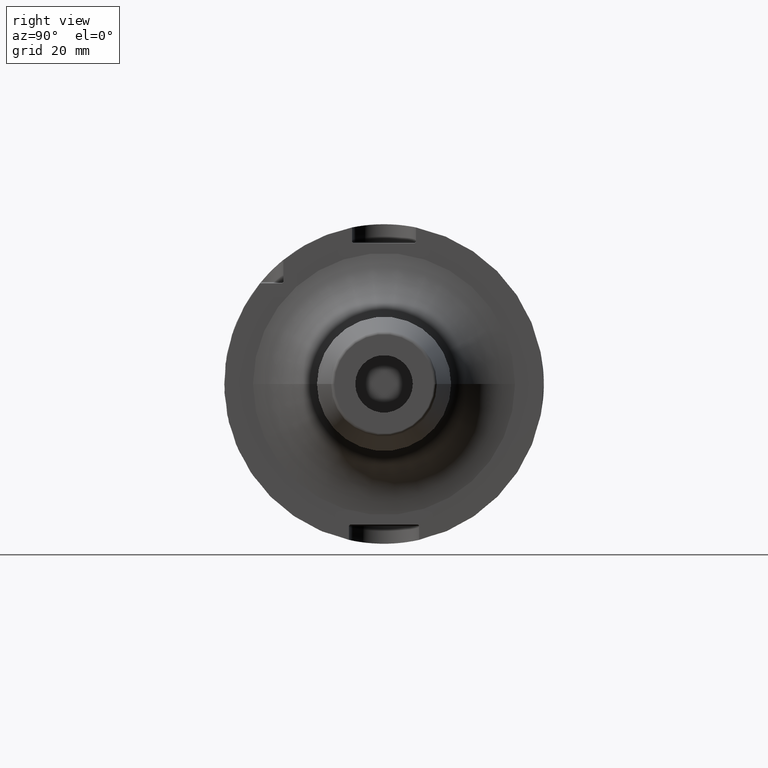
[diagram: clean part render]
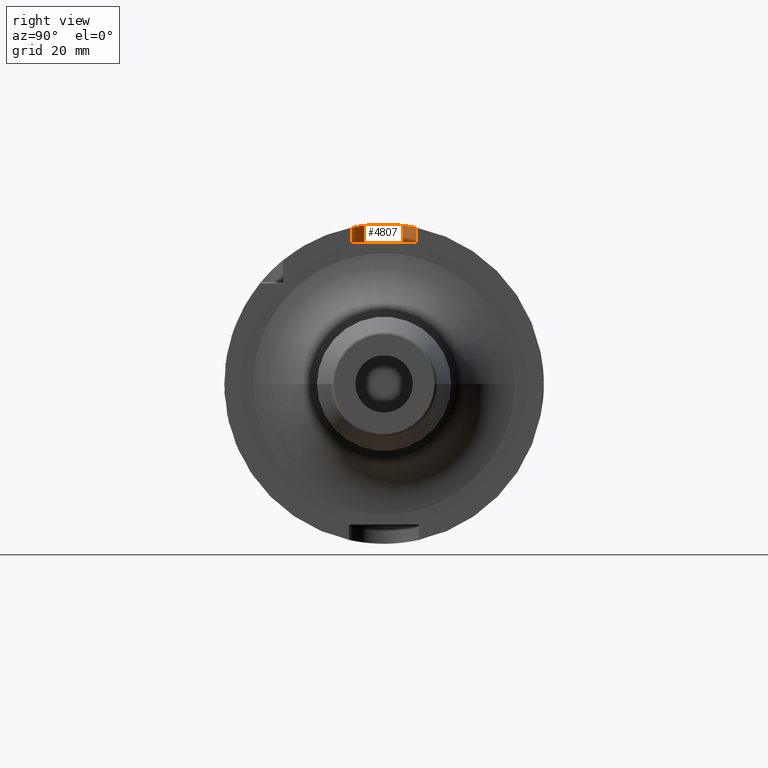
[diagram: same view with one face highlighted and labeled with its STEP entity id]
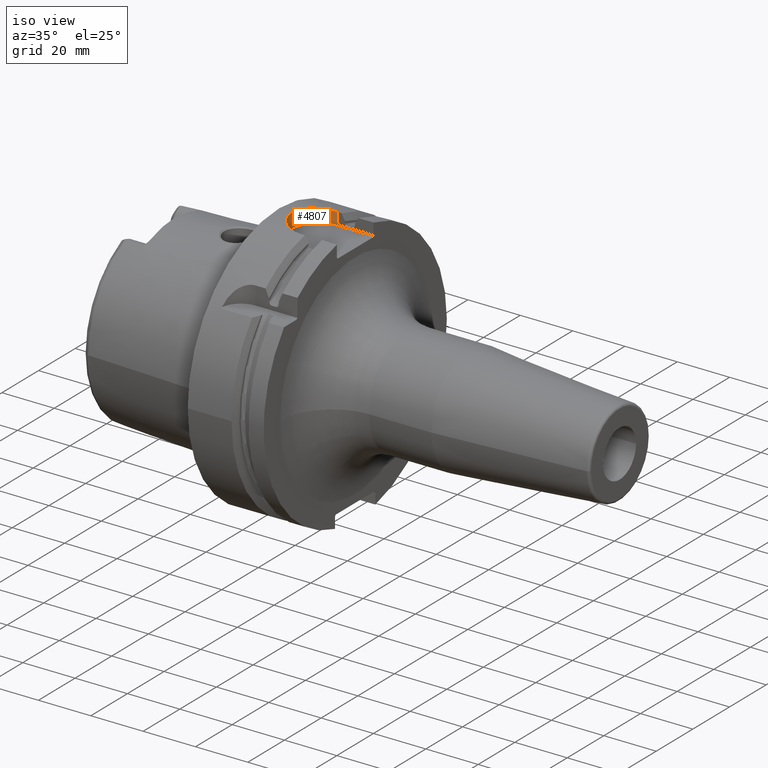
[diagram: same view with one face highlighted and labeled with its STEP entity id]
A machine part, right view. The second image highlights one B-rep face of the part: STEP entity #4807.
A second angle (iso view) of the same face is appended — the face is thin or edge-on in the first view.
In plain terms, the highlighted cylindrical surface (edge-blend (fillet) strip) has radius 10 mm, axis along (0, 0, 1).
Its self-contained STEP definition (entity closure, byte-faithful):
#992=CARTESIAN_POINT('',(1.5E1,-1.E1,4.898979485566E1));
#993=CARTESIAN_POINT('',(1.461433853181E1,-1.E1,4.898979485566E1));
#994=CARTESIAN_POINT('',(1.384792823766E1,-9.955829030331E0,4.899884397842E1));
#995=CARTESIAN_POINT('',(1.270318782193E1,-9.755652716258E0,4.903927543622E1));
#996=CARTESIAN_POINT('',(1.159291112533E1,-9.425637273974E0,4.910408175239E1));
#997=CARTESIAN_POINT('',(1.051814151292E1,-8.964783602916E0,4.919070538252E1));
#998=CARTESIAN_POINT('',(9.506583198542E0,-8.383297550249E0,4.929362650512E1));
#999=CARTESIAN_POINT('',(8.561762080581E0,-7.681706500136E0,4.940835010068E1));
#1000=CARTESIAN_POINT('',(7.709606997002E0,-6.878114233116E0,4.952715502508E1));
#1001=CARTESIAN_POINT('',(6.953904677377E0,-5.976638776685E0,4.964454319775E1));
#1002=CARTESIAN_POINT('',(6.311925981810E0,-4.997170223059E0,4.975312843034E1));
#1003=CARTESIAN_POINT('',(5.789768440832E0,-3.952954652492E0,4.984737665205E1));
#1004=CARTESIAN_POINT('',(5.393269728393E0,-2.856412480124E0,4.992248960941E1));
#1005=CARTESIAN_POINT('',(5.128098629202E0,-1.730127295259E0,4.997441976121E1));
#1006=CARTESIAN_POINT('',(4.994342500169E0,-5.763771997261E-1,
5.000112679140E1));
#1007=CARTESIAN_POINT('',(4.994338239448E0,5.763207127621E-1,5.000112763866E1));
#1008=CARTESIAN_POINT('',(5.128092900613E0,1.730089190041E0,4.997442091565E1));
#1009=CARTESIAN_POINT('',(5.393247424547E0,2.856338942221E0,4.992249389752E1));
#1010=CARTESIAN_POINT('',(5.789756364753E0,3.952927169483E0,4.984737889404E1));
#1011=CARTESIAN_POINT('',(6.311888292065E0,4.997101378585E0,4.975313514011E1));
#1012=CARTESIAN_POINT('',(6.953872081190E0,5.976601905871E0,4.964454816682E1));
#1013=CARTESIAN_POINT('',(7.709631499119E0,6.878137309644E0,4.952715165427E1));
#1014=CARTESIAN_POINT('',(8.561704241599E0,7.681659093425E0,4.940835750252E1));
#1015=CARTESIAN_POINT('',(9.506643668842E0,8.383341435183E0,4.929361929735E1));
#1016=CARTESIAN_POINT('',(1.051816652897E1,8.964792511055E0,4.919070356194E1));
#1017=CARTESIAN_POINT('',(1.159290882117E1,9.425636853385E0,4.910408186055E1));
#1018=CARTESIAN_POINT('',(1.270318273238E1,9.755649364006E0,4.903927608242E1));
#1019=CARTESIAN_POINT('',(1.384784959592E1,9.955819016163E0,4.899884601793E1));
#1020=CARTESIAN_POINT('',(1.461430453034E1,1.E1,4.898979485566E1));
#1021=CARTESIAN_POINT('',(1.5E1,1.E1,4.898979485566E1));
#1722=DIRECTION('',(-3.563492470221E-10,2.388784428E-8,1.E0));
#1723=VECTOR('',#1722,4.589794746038E0);
#1724=CARTESIAN_POINT('',(1.500000000164E1,9.999999890360E0,4.440000010963E1));
#1725=LINE('',#1724,#1723);
#1726=CARTESIAN_POINT('',(1.5E1,0.E0,4.440000080334E1));
#1727=DIRECTION('',(0.E0,0.E0,-1.E0));
#1728=DIRECTION('',(0.E0,-1.E0,0.E0));
#1729=AXIS2_PLACEMENT_3D('',#1726,#1727,#1728);
#1760=DIRECTION('',(-4.169586210502E-10,-2.388911719913E-8,1.E0));
#1761=VECTOR('',#1760,4.589794746044E0);
#1762=CARTESIAN_POINT('',(1.500000000191E1,-9.999999890354E0,4.440000010962E1));
#1763=LINE('',#1762,#1761);
#2962=VERTEX_POINT('',#992);
#2963=VERTEX_POINT('',#1021);
#2990=CARTESIAN_POINT('',(1.500000000164E1,9.999999890360E0,4.440000010963E1));
#2991=VERTEX_POINT('',#2990);
#2992=CARTESIAN_POINT('',(1.500000000191E1,-9.999999890354E0,4.440000010962E1));
#2993=VERTEX_POINT('',#2992);
#4794=CARTESIAN_POINT('',(1.5E1,0.E0,4.4E1));
#4795=DIRECTION('',(0.E0,0.E0,1.E0));
#4796=DIRECTION('',(1.E0,0.E0,0.E0));
#4797=AXIS2_PLACEMENT_3D('',#4794,#4795,#4796);
#4798=CYLINDRICAL_SURFACE('',#4797,1.E1);
#4799=ORIENTED_EDGE('',*,*,#4777,.F.);
#4801=ORIENTED_EDGE('',*,*,#4800,.F.);
#4803=ORIENTED_EDGE('',*,*,#4802,.T.);
#4804=ORIENTED_EDGE('',*,*,#4159,.T.);
#4805=EDGE_LOOP('',(#4799,#4801,#4803,#4804));
#4806=FACE_OUTER_BOUND('',#4805,.F.);
#4807=ADVANCED_FACE('',(#4806),#4798,.F.);
#1022=B_SPLINE_CURVE_WITH_KNOTS('',3,(#992,#993,#994,#995,#996,#997,#998,#999,
#1000,#1001,#1002,#1003,#1004,#1005,#1006,#1007,#1008,#1009,#1010,#1011,#1012,
#1013,#1014,#1015,#1016,#1017,#1018,#1019,#1020,#1021),.UNSPECIFIED.,.F.,.F.,(4,
1,1,1,1,1,1,1,1,1,1,1,1,1,1,1,1,1,1,1,1,1,1,1,1,1,1,4),(0.E0,3.703703703704E-2,
7.407407407407E-2,1.111111111111E-1,1.481481481481E-1,1.851851851852E-1,
2.222222222222E-1,2.592592592593E-1,2.962962962963E-1,3.333333333333E-1,
3.703703703704E-1,4.074074074074E-1,4.444444444444E-1,4.814814814815E-1,
5.185185185185E-1,5.555555555556E-1,5.925925925926E-1,6.296296296296E-1,
6.666666666667E-1,7.037037037037E-1,7.407407407407E-1,7.777777777778E-1,
8.148148148148E-1,8.518518518519E-1,8.888888888889E-1,9.259259259259E-1,
9.629629629630E-1,1.E0),.UNSPECIFIED.);
#1730=CIRCLE('',#1729,1.E1);
#4159=EDGE_CURVE('',#2962,#2963,#1022,.T.);
#4777=EDGE_CURVE('',#2991,#2963,#1725,.T.);
#4800=EDGE_CURVE('',#2993,#2991,#1730,.T.);
#4802=EDGE_CURVE('',#2993,#2962,#1763,.T.);